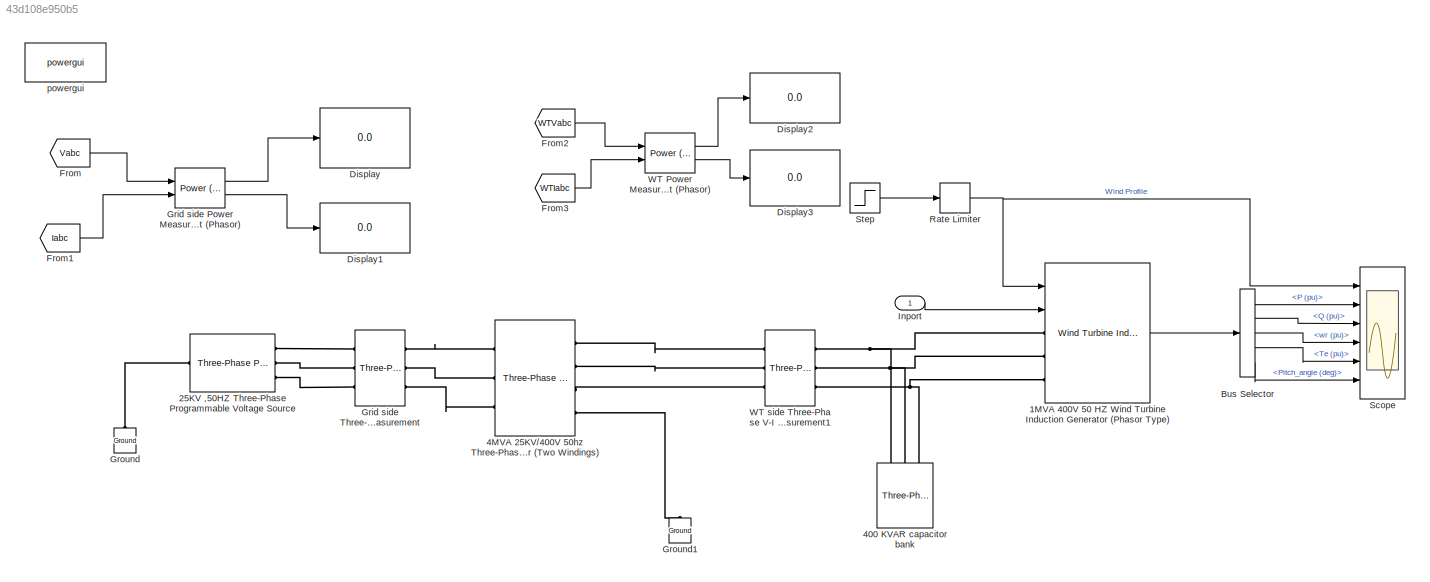
MODEL slx_43d108e950b5
KIND model
CONFIG AbsTol = 1e-3
CONFIG EnableMultiTasking = off
CONFIG FixedStep = auto
CONFIG MaxStep = auto
CONFIG MinStep = auto
CONFIG RelTol = 1e-4
CONFIG SampleTimeConstraint = Unconstrained
CONFIG SolverName = ode23tb
CONFIG StartTime = 0.0
CONFIG StopTime = 20.0
BLOCK [Reference] 1MVA 400V 50 HZ Wind Turbine Induction Generator (Phasor Type)  REF=spsWindTurbineInductionGeneratorPhasorTypeLib/Wind Turbine
Induction Generator
(Phasor Type)
  Ports = [2, 1, 0, 0, 0, 3]
  SourceBlock = spsWindTurbineInductionGeneratorPhasorTypeLib/Wind Turbine\nInduction Generator\n(Phasor Type)
  SourceProductBaseCode = PS
  SourceType = Wind Turbine Induction Generator (Phasor Type)
BLOCK [Reference] 25KV ,50HZ Three-Phase Programmable Voltage Source  REF=spsThreePhaseProgrammableVoltageSourceLib/Three-Phase
Programmable
Voltage Source
  Ports = [0, 0, 0, 0, 0, 1, 3]
  SourceBlock = spsThreePhaseProgrammableVoltageSourceLib/Three-Phase\nProgrammable\nVoltage Source
  SourceProductBaseCode = PS
  SourceType = Three-Phase Programmable Voltage Source
BLOCK [Reference] 400 KVAR capacitor bank   REF=spsThreePhaseParallelRLCLoadLib/Three-Phase
Parallel RLC Load
  AttributesFormatString = \n
  Ports = [0, 0, 0, 0, 0, 3]
  SourceBlock = spsThreePhaseParallelRLCLoadLib/Three-Phase\nParallel RLC Load
  SourceProductBaseCode = PS
  SourceType = Three-Phase Parallel RLC Load
BLOCK [Reference] 4MVA 25KV//400V 50hz Three-Phase Transformer (Two Windings)  REF=spsThreePhaseTransformerTwoWindingsLib/Three-Phase
Transformer
(Two Windings)
  Ports = [0, 0, 0, 0, 0, 3, 4]
  SourceBlock = spsThreePhaseTransformerTwoWindingsLib/Three-Phase\nTransformer\n(Two Windings)
  SourceProductBaseCode = PS
  SourceType = Three-Phase Transformer (Two Windings)
BLOCK [BusSelector] Bus Selector
  OutputSignals = P (pu),Q (pu),wr (pu),Te (pu),Pitch_angle (deg)
  Ports = [1, 5]
BLOCK [Display] Display
  Decimation = 1
  Ports = [1]
BLOCK [Display] Display1
  Decimation = 1
  Ports = [1]
BLOCK [Display] Display2
  Decimation = 1
  Ports = [1]
BLOCK [Display] Display3
  Decimation = 1
  Ports = [1]
BLOCK [From] From
  GotoTag = Vabc
  TagVisibility = global
BLOCK [From] From1
  GotoTag = Iabc
  TagVisibility = global
BLOCK [From] From2
  GotoTag = WTVabc
  TagVisibility = global
BLOCK [From] From3
  GotoTag = WTIabc
  TagVisibility = global
BLOCK [Reference] Grid side Power Measurement (Phasor)  REF=spsPowerPhasorLib/Power
(Phasor)
  Ports = [2, 2]
  SourceBlock = spsPowerPhasorLib/Power\n(Phasor)
  SourceProductBaseCode = PS
  SourceType = Power (Phasor)
BLOCK [Reference] Grid side Three-Phase V-I Measurement  REF=spsThreePhaseVIMeasurementLib/Three-Phase
V-I Measurement
  Ports = [0, 0, 0, 0, 0, 3, 3]
  SourceBlock = spsThreePhaseVIMeasurementLib/Three-Phase\nV-I Measurement
  SourceProductBaseCode = PS
  SourceType = Three-Phase VI Measurement
BLOCK [Reference] Ground  REF=spsGroundLib/Ground
  NameLocation = right
  Ports = [0, 0, 0, 0, 0, 1]
  SourceBlock = spsGroundLib/Ground
  SourceProductBaseCode = PS
  SourceType = Ground
BLOCK [Reference] Ground1  REF=spsGroundLib/Ground
  NameLocation = right
  Ports = [0, 0, 0, 0, 0, 1]
  SourceBlock = spsGroundLib/Ground
  SourceProductBaseCode = PS
  SourceType = Ground
BLOCK [Inport] Inport
BLOCK [RateLimiter] Rate Limiter
BLOCK [Scope] Scope
  Floating = off
  NumInputPorts = 6
  Ports = [6]
  ScopeSpecificationString = Simulink.scopes.TimeScopeBlockCfg('CurrentConfiguration', extmgr.ConfigurationSet(extmgr.Configuration('Core','General UI',true,'FigureColor',[1 1 1]),extmgr.Configuration('Core','Source UI',true),extmgr.Configuration('Sources','WiredSimulink',true),extmgr.Configuration('Visuals','Time Domain',true,'TimeAxisLabels','All','SerializedDisplays',{struct('MinYLimReal','7.25','MaxYLimReal','14.75','YLab...<+5821ch>
BLOCK [Step] Step
  After = 14
  Before = 8
  SampleTime = 0
  Time = 5
BLOCK [Reference] WT Power Measurement (Phasor)  REF=spsPowerPhasorLib/Power
(Phasor)
  Ports = [2, 2]
  SourceBlock = spsPowerPhasorLib/Power\n(Phasor)
  SourceProductBaseCode = PS
  SourceType = Power (Phasor)
BLOCK [Reference] WT side Three-Phase V-I Measurement1  REF=spsThreePhaseVIMeasurementLib/Three-Phase
V-I Measurement
  Ports = [0, 0, 0, 0, 0, 3, 3]
  SourceBlock = spsThreePhaseVIMeasurementLib/Three-Phase\nV-I Measurement
  SourceProductBaseCode = PS
  SourceType = Three-Phase VI Measurement
BLOCK [Reference] powergui  REF=spspowerguiLib/powergui
  Ports = []
  Priority = 1
  SourceBlock = spspowerguiLib/powergui
  SourceProductBaseCode = PS
  SourceType = PSB option menu block
LINE 1MVA 400V 50 HZ Wind Turbine Induction Generator (Phasor Type):1 -> Bus Selector:1
LINE Bus Selector:1 -> Scope:2
LINE Bus Selector:2 -> Scope:3
LINE Bus Selector:3 -> Scope:4
LINE Bus Selector:4 -> Scope:5
LINE Bus Selector:5 -> Scope:6
LINE From1:1 -> Grid side Power Measurement (Phasor):2
LINE From2:1 -> WT Power Measurement (Phasor):1
LINE From3:1 -> WT Power Measurement (Phasor):2
LINE From:1 -> Grid side Power Measurement (Phasor):1
LINE Grid side Power Measurement (Phasor):1 -> Display:1
LINE Grid side Power Measurement (Phasor):2 -> Display1:1
LINE Inport:1 -> 1MVA 400V 50 HZ Wind Turbine Induction Generator (Phasor Type):2
NET Rate Limiter:1 -> 1MVA 400V 50 HZ Wind Turbine Induction Generator (Phasor Type):1, Scope:1
LINE Step:1 -> Rate Limiter:1
LINE WT Power Measurement (Phasor):1 -> Display2:1
LINE WT Power Measurement (Phasor):2 -> Display3:1
PNET net1: 1MVA 400V 50 HZ Wind Turbine Induction Generator (Phasor Type):LConn1 -- 400 KVAR capacitor bank :LConn1 -- WT side Three-Phase V-I Measurement1:RConn1
PNET net2: 1MVA 400V 50 HZ Wind Turbine Induction Generator (Phasor Type):LConn2 -- 400 KVAR capacitor bank :LConn2 -- WT side Three-Phase V-I Measurement1:RConn2
PNET net3: 1MVA 400V 50 HZ Wind Turbine Induction Generator (Phasor Type):LConn3 -- 400 KVAR capacitor bank :LConn3 -- WT side Three-Phase V-I Measurement1:RConn3
PLINE 25KV ,50HZ Three-Phase Programmable Voltage Source:LConn1 -- Ground:LConn1
PLINE 25KV ,50HZ Three-Phase Programmable Voltage Source:RConn1 -- Grid side Three-Phase V-I Measurement:LConn1
PLINE 25KV ,50HZ Three-Phase Programmable Voltage Source:RConn2 -- Grid side Three-Phase V-I Measurement:LConn2
PLINE 25KV ,50HZ Three-Phase Programmable Voltage Source:RConn3 -- Grid side Three-Phase V-I Measurement:LConn3
PLINE 4MVA 25KV//400V 50hz Three-Phase Transformer (Two Windings):LConn1 -- Grid side Three-Phase V-I Measurement:RConn1
PLINE 4MVA 25KV//400V 50hz Three-Phase Transformer (Two Windings):LConn2 -- Grid side Three-Phase V-I Measurement:RConn2
PLINE 4MVA 25KV//400V 50hz Three-Phase Transformer (Two Windings):LConn3 -- Grid side Three-Phase V-I Measurement:RConn3
PLINE 4MVA 25KV//400V 50hz Three-Phase Transformer (Two Windings):RConn1 -- WT side Three-Phase V-I Measurement1:LConn1
PLINE 4MVA 25KV//400V 50hz Three-Phase Transformer (Two Windings):RConn2 -- WT side Three-Phase V-I Measurement1:LConn2
PLINE 4MVA 25KV//400V 50hz Three-Phase Transformer (Two Windings):RConn3 -- WT side Three-Phase V-I Measurement1:LConn3
PLINE 4MVA 25KV//400V 50hz Three-Phase Transformer (Two Windings):RConn4 -- Ground1:LConn1
note: NET lines group one-source signal fan-out (src -> all destinations, sorted); 1:1 wires keep LINE; PNET lines group multi-terminal physical nets as a canonical sorted terminal list (undirected conserving connections); 2-terminal nets keep the pairwise PLINE form
